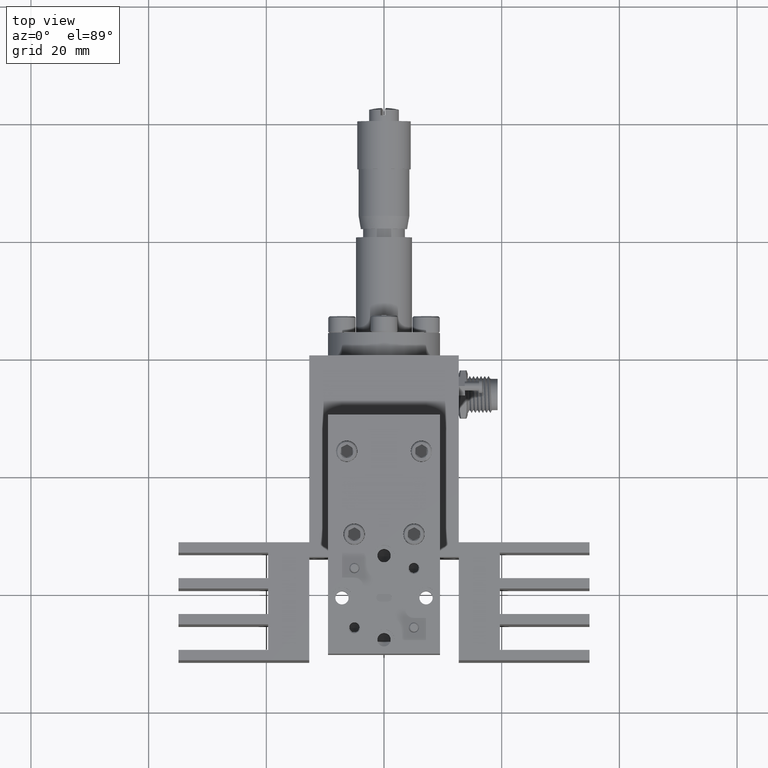
[diagram: clean part render]
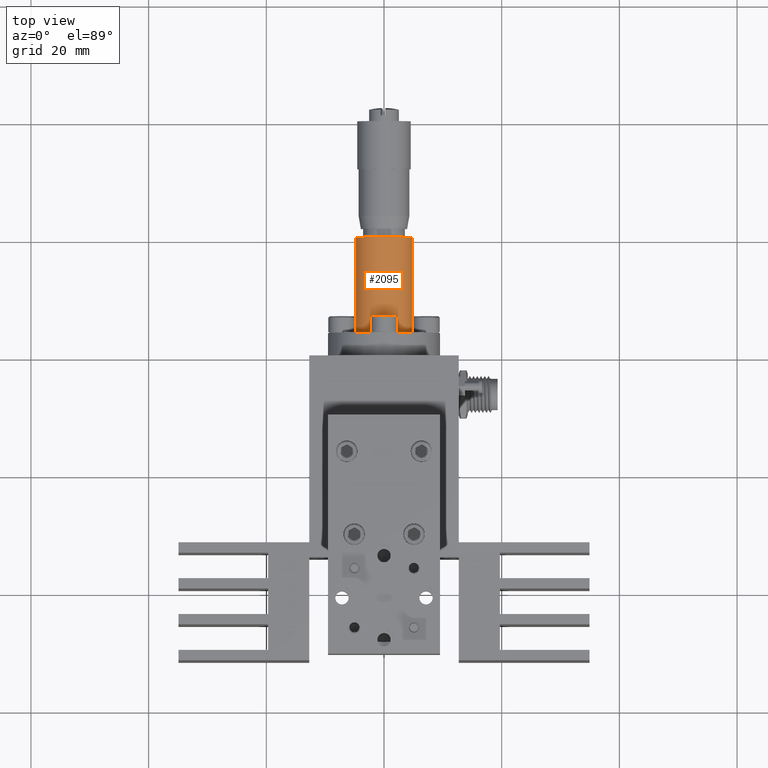
[diagram: same view with one face highlighted and labeled with its STEP entity id]
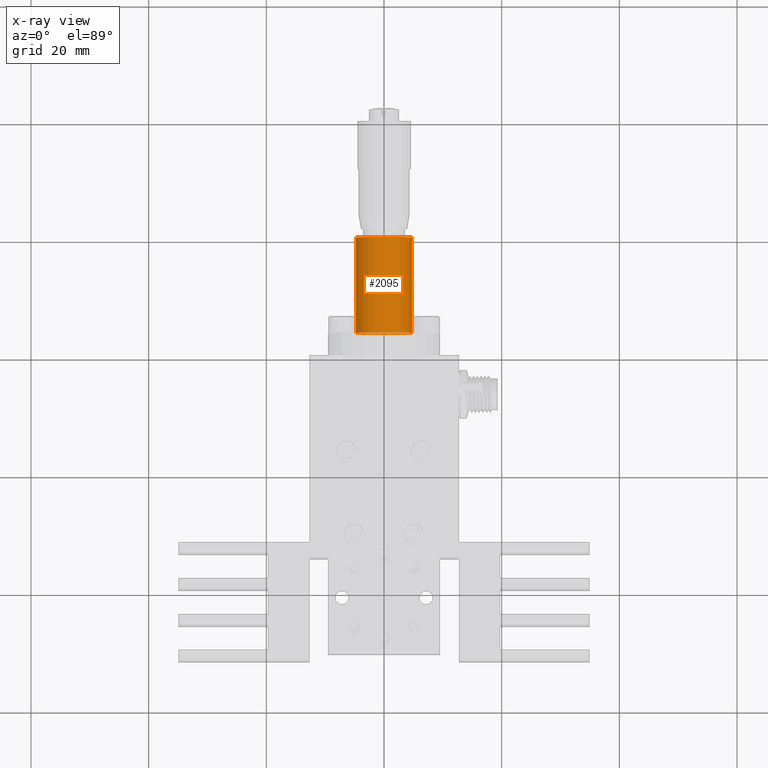
[diagram: x-ray of the same camera — body ghosted, the highlighted face saturated]
A machine part, top view. The second image highlights one B-rep face of the part: STEP entity #2095.
The next image is the same camera in x-ray: the body ghosted, the highlighted face saturated — about 0% of this face is hidden behind the body in this view.
In plain terms, the highlighted cylindrical surface (edge-blend (fillet) strip) has radius 4.7625 mm, axis along (0, 1, 0).
Its self-contained STEP definition (entity closure, byte-faithful):
#2095 = ADVANCED_FACE ( 'NONE', ( #12982 ), #36420, .T. ) ;
#3564 = AXIS2_PLACEMENT_3D ( 'NONE', #19710, #25456, #19840 ) ;
#7084 = DIRECTION ( 'NONE',  ( 2.319949590955133500E-018, 1.000000000000000000, 5.550089440289664400E-017 ) ) ;
#7252 = DIRECTION ( 'NONE',  ( -1.000000000000000000, 0.0000000000000000000, -3.035766082959414300E-017 ) ) ;
#7283 = EDGE_CURVE ( 'NONE', #13042, #32988, #7637, .T. ) ;
#7331 = CARTESIAN_POINT ( 'NONE',  ( -0.1874999999999999200, 0.9579999999999997400, 1.472491077601382600E-018 ) ) ;
#7637 = CIRCLE ( 'NONE', #3564, 0.1874999999999999400 ) ;
#8409 = ORIENTED_EDGE ( 'NONE', *, *, #7283, .T. ) ;
#10094 = DIRECTION ( 'NONE',  ( 2.319949590955133500E-018, 1.000000000000000000, 5.550089440289664400E-017 ) ) ;
#11519 = LINE ( 'NONE', #31469, #37771 ) ;
#11753 = VERTEX_POINT ( 'NONE', #22117 ) ;
#12977 = AXIS2_PLACEMENT_3D ( 'NONE', #34265, #16048, #7252 ) ;
#12982 = FACE_OUTER_BOUND ( 'NONE', #17385, .T. ) ;
#13042 = VERTEX_POINT ( 'NONE', #7331 ) ;
#14008 = CARTESIAN_POINT ( 'NONE',  ( 0.1875000000000000600, 1.598000000000000100, 5.357902758163895300E-017 ) ) ;
#16048 = DIRECTION ( 'NONE',  ( 2.319949590955133500E-018, 1.000000000000000000, 5.550089440289664400E-017 ) ) ;
#16191 = AXIS2_PLACEMENT_3D ( 'NONE', #36631, #21683, #24688 ) ;
#17301 = VECTOR ( 'NONE', #10094, 39.37007874015748100 ) ;
#17385 = EDGE_LOOP ( 'NONE', ( #8409, #21427, #33957, #33601 ) ) ;
#18491 = EDGE_CURVE ( 'NONE', #13042, #11753, #11519, .T. ) ;
#19710 = CARTESIAN_POINT ( 'NONE',  ( 2.959533883033234100E-017, 0.9579999999999997400, 7.164552483150279700E-018 ) ) ;
#19840 = DIRECTION ( 'NONE',  ( -1.000000000000000000, 0.0000000000000000000, -3.035766082959412400E-017 ) ) ;
#21427 = ORIENTED_EDGE ( 'NONE', *, *, #26740, .T. ) ;
#21683 = DIRECTION ( 'NONE',  ( 2.319949590955133500E-018, 1.000000000000000000, 5.550089440289664400E-017 ) ) ;
#22117 = CARTESIAN_POINT ( 'NONE',  ( -0.1874999999999999700, 1.598000000000000100, 3.699306349545520800E-017 ) ) ;
#23470 = LINE ( 'NONE', #30558, #17301 ) ;
#23808 = VERTEX_POINT ( 'NONE', #14008 ) ;
#24688 = DIRECTION ( 'NONE',  ( -1.000000000000000000, 0.0000000000000000000, -3.035766082959414900E-017 ) ) ;
#25456 = DIRECTION ( 'NONE',  ( 2.319949590955133500E-018, 1.000000000000000000, 5.550089440289664400E-017 ) ) ;
#26280 = EDGE_CURVE ( 'NONE', #11753, #23808, #30004, .T. ) ;
#26740 = EDGE_CURVE ( 'NONE', #32988, #23808, #23470, .T. ) ;
#30004 = CIRCLE ( 'NONE', #12977, 0.1875000000000000300 ) ;
#30558 = CARTESIAN_POINT ( 'NONE',  ( 0.1875000000000000300, 1.598000000000000100, 7.133931379056588200E-017 ) ) ;
#31469 = CARTESIAN_POINT ( 'NONE',  ( -0.1874999999999999400, 1.598000000000000100, 3.699306349545520800E-017 ) ) ;
#32988 = VERTEX_POINT ( 'NONE', #33346 ) ;
#33346 = CARTESIAN_POINT ( 'NONE',  ( 0.1874999999999999700, 0.9579999999999997400, 5.357902758163895300E-017 ) ) ;
#33601 = ORIENTED_EDGE ( 'NONE', *, *, #18491, .F. ) ;
#33957 = ORIENTED_EDGE ( 'NONE', *, *, #26280, .F. ) ;
#34265 = CARTESIAN_POINT ( 'NONE',  ( 3.108010656854362100E-017, 1.598000000000000100, 4.268512490100411300E-017 ) ) ;
#36420 = CYLINDRICAL_SURFACE ( 'NONE', #16191, 0.1874999999999999700 ) ;
#36631 = CARTESIAN_POINT ( 'NONE',  ( 3.108010656854362100E-017, 1.598000000000000100, 4.268512490100411300E-017 ) ) ;
#37771 = VECTOR ( 'NONE', #7084, 39.37007874015748100 ) ;